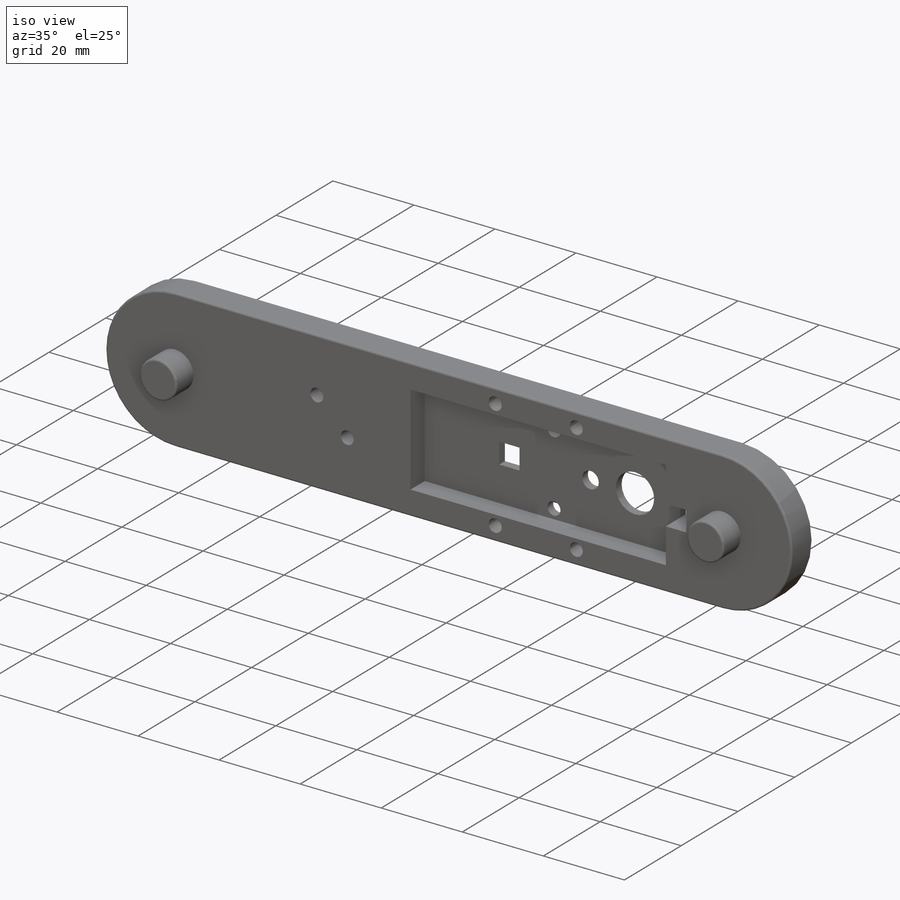
[diagram: iso view]
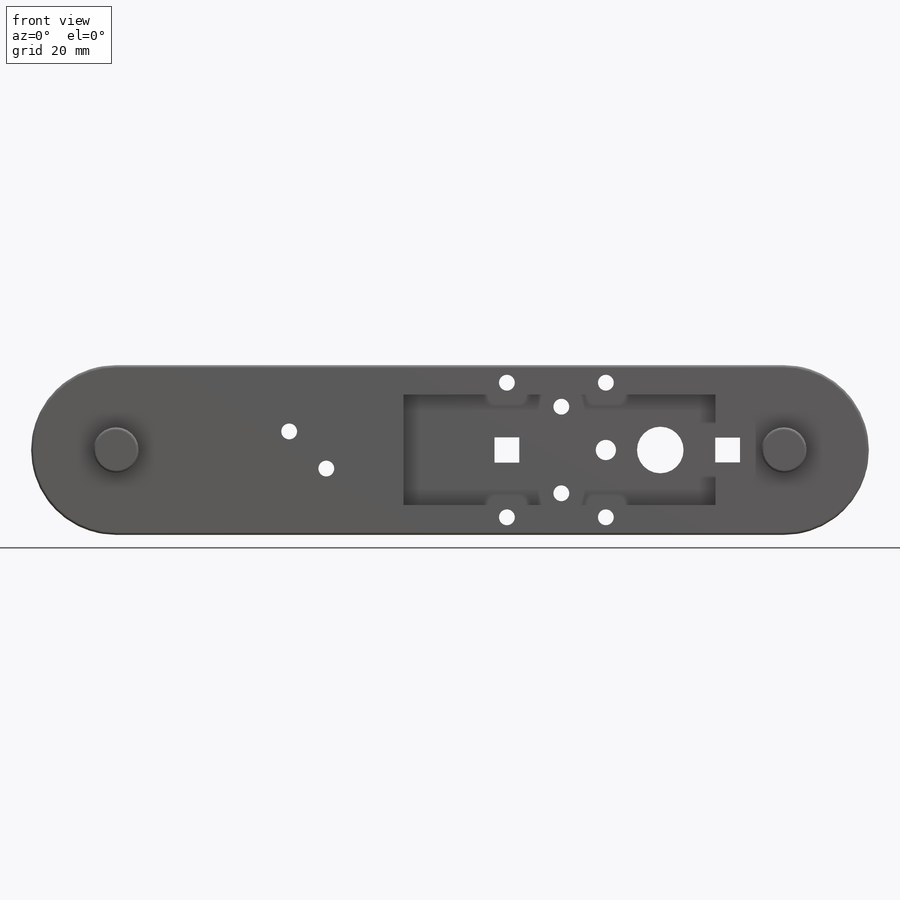
[diagram: front view]
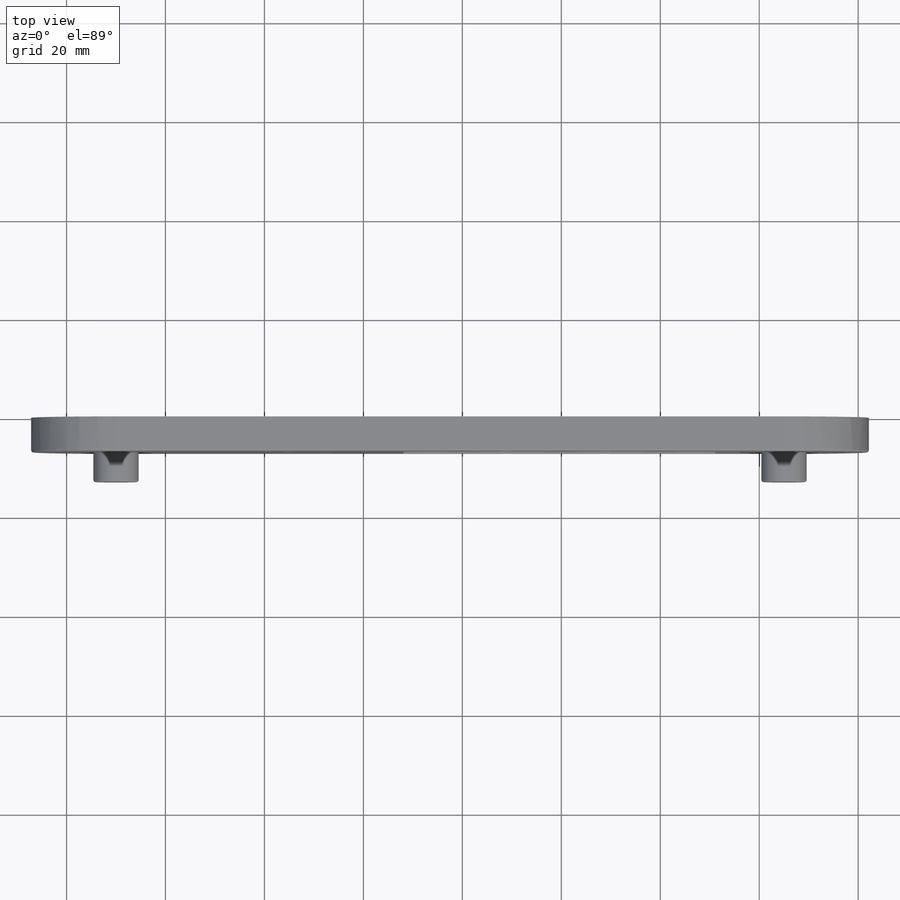
[diagram: top view]
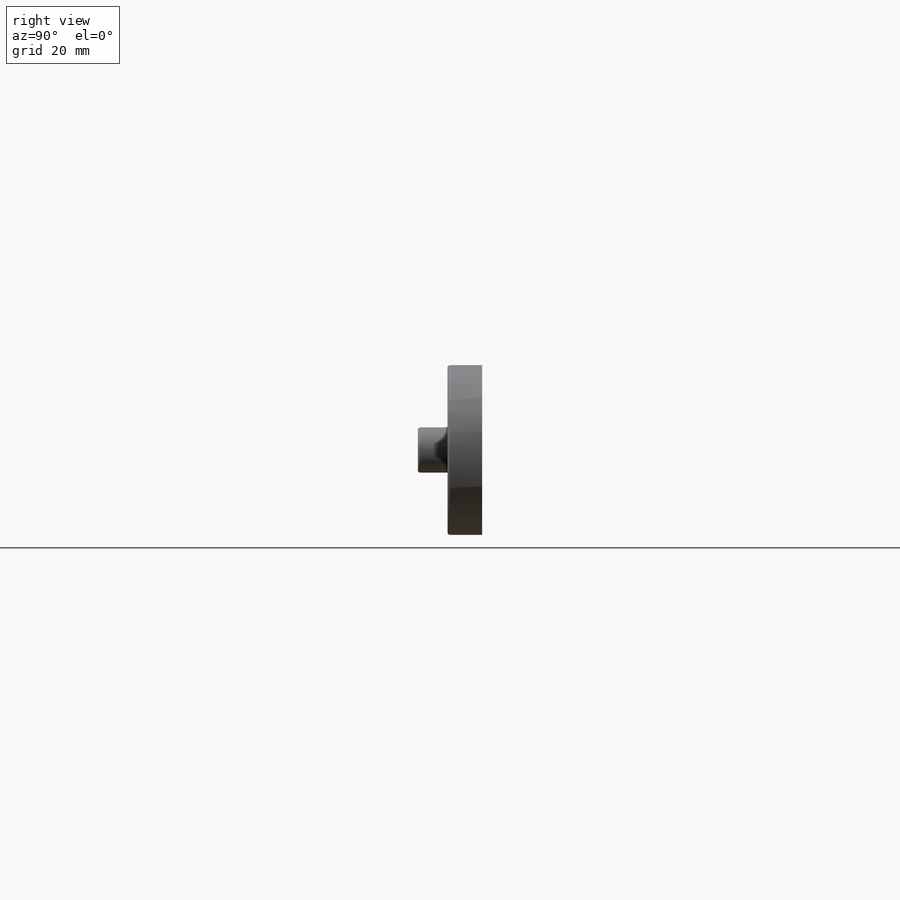
[diagram: right view]
SOLIDWORKS PART (.sldprt)
format: sldprt  version: not decoded by parser v0  size: 546,304 bytes
history: native  units: mm
features: sketch x11, extrude x6, cut_extrude x3, material x1, fillet x1 (+11 scaffold rows collapsed)
feature tree (33):
  scaffold x11  (default folders/planes/origin — collapsed)
  material  "Material <not specified>"
  sketch  "motor"  dims[c1.D8=3.2mm c1.D11=4.1mm c1.D1=3.65mm c1.D2=4.0mm c1.D3=5.0mm c1.D4=5.0mm c1.D5=15.0mm c1.D6=22.3mm c1.D7=63.0mm c1.D9=20.0mm c1.D10=8.75mm c1.D12=11.0mm c1.D14=5.0mm c1.D15=5.1mm c1.D16=20.0mm c1.D17=2.0mm c1.D13=1.0mm c2.D17=1.0mm c2.D18=1.0mm c2.D19=1.0mm c2.D20=1.0mm c2.D21=1.0mm c2.D22=1.0mm c2.D5=11.1mm c2.D23=11.0mm c2.D13=2.0mm]
  sketch  "hole_distance"  dims[D1=5.15mm D2=5.15mm D3=135.0mm D4=25.0mm]
  sketch  "Sketch6"  dims[c1.D1=~17.840961mm c1.D2=~5.415025mm c1.D3=3.2mm c1.D4=3.2mm c2.D1=6.0mm c2.D2=2.0mm c2.D5=5.7mm c2.D6=0.7mm c2.D7=13.6mm c2.D8=3.55mm c2.D9=79.0mm]
  extrude  "Boss-Extrude4"  Depth=2mm
  sketch  "Sketch7"  dims[c1.D1=~17.840961mm c1.D2=~5.415025mm c1.D3=3.2mm c1.D4=3.2mm c2.D1=6.0mm c2.D2=2.0mm c2.D5=5.7mm c2.D6=0.7mm c2.D7=13.6mm c2.D8=3.55mm c2.D9=79.0mm]
  extrude  "Boss-Extrude5"  Depth=5mm
  sketch  "Sketch8"  dims[D1=3.2mm D2=3.2mm D3=3.75mm D4=35.0mm D5=7.5mm D6=7.5mm]
  cut_extrude  "midsection_holes"  [1 undecoded]
  sketch  "Sketch9"  dims[D1=5.7mm D2=5.7mm D3=1.0mm]
  cut_extrude  "nutholes"  Depth=2mm
  sketch  "Sketch12"  dims[c1.D1=5.15mm c1.D2=5.15mm c2.D1=2.0mm c2.D2=2.0mm]
  extrude  "Boss-Extrude6"  Depth=6mm
  sketch  "Sketch13"
  cut_extrude  "Cut-Extrude4"  Depth=4mm
  fillet  "Fillet1"  Radius=0.5mm
  sketch  "Sketch4"
  extrude  "Boss-Extrude3"  Depth=0.6mm
  sketch  "Sketch2"
  extrude  "Boss-Extrude1"  Depth=0.6mm
  sketch  "Sketch3"
  extrude  "Boss-Extrude2"  Depth=5mm
decode coverage: 16 of 21 modeling features carry decoded parameters
note: ~ marks probable driven/reference dimensions
note: 1 parameter value undecoded
note: suppression state not decoded; provenance and decode notes live in map.json
